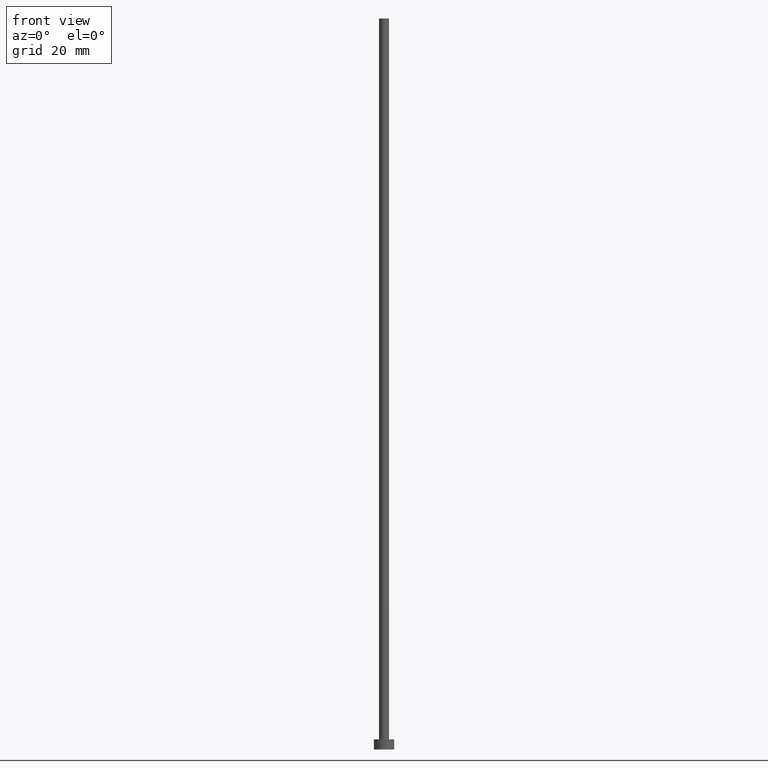
[diagram: clean part render]
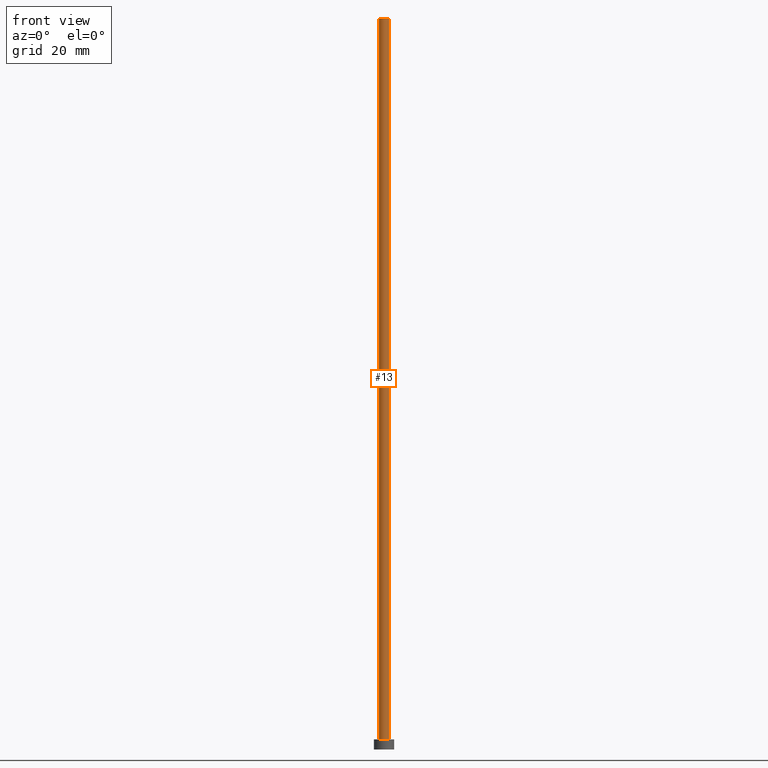
[diagram: same view with one face highlighted and labeled with its STEP entity id]
A machine part, front view. The second image highlights one B-rep face of the part: STEP entity #13.
In plain terms, the highlighted cylindrical surface (edge-blend (fillet) strip) has radius 1 mm, axis along (-0, -0, -1).
Its self-contained STEP definition (entity closure, byte-faithful):
#5 = VERTEX_POINT ( 'NONE', #41 ) ;
#9 = EDGE_LOOP ( 'NONE', ( #39, #111, #224, #11 ) ) ;
#11 = ORIENTED_EDGE ( 'NONE', *, *, #109, .T. ) ;
#13 = ADVANCED_FACE ( 'NONE', ( #180 ), #167, .T. ) ;
#27 = DIRECTION ( 'NONE',  ( 1.000000000000000000, 0.000000000000000000, 0.000000000000000000 ) ) ;
#39 = ORIENTED_EDGE ( 'NONE', *, *, #140, .F. ) ;
#41 = CARTESIAN_POINT ( 'NONE',  ( 1.000000000000000000, 1.224646799147352961E-16, 2.000000000000000000 ) ) ;
#46 = AXIS2_PLACEMENT_3D ( 'NONE', #231, #205, #188 ) ;
#47 = CARTESIAN_POINT ( 'NONE',  ( 0.000000000000000000, 0.000000000000000000, 145.1999999999999886 ) ) ;
#49 = CIRCLE ( 'NONE', #65, 1.000000000000000000 ) ;
#64 = VERTEX_POINT ( 'NONE', #201 ) ;
#65 = AXIS2_PLACEMENT_3D ( 'NONE', #47, #172, #170 ) ;
#95 = VERTEX_POINT ( 'NONE', #250 ) ;
#100 = CARTESIAN_POINT ( 'NONE',  ( 1.000000000000000000, 1.224646799147352961E-16, 145.1999999999999886 ) ) ;
#107 = DIRECTION ( 'NONE',  ( -0.000000000000000000, -0.000000000000000000, -1.000000000000000000 ) ) ;
#109 = EDGE_CURVE ( 'NONE', #95, #5, #110, .T. ) ;
#110 = CIRCLE ( 'NONE', #129, 1.000000000000000000 ) ;
#111 = ORIENTED_EDGE ( 'NONE', *, *, #174, .F. ) ;
#112 = VECTOR ( 'NONE', #107, 1000.000000000000000 ) ;
#116 = CARTESIAN_POINT ( 'NONE',  ( 1.000000000000000000, 1.224646799147352961E-16, 145.1999999999999886 ) ) ;
#129 = AXIS2_PLACEMENT_3D ( 'NONE', #226, #210, #27 ) ;
#137 = VERTEX_POINT ( 'NONE', #100 ) ;
#140 = EDGE_CURVE ( 'NONE', #137, #5, #186, .T. ) ;
#145 = LINE ( 'NONE', #173, #112 ) ;
#147 = EDGE_CURVE ( 'NONE', #64, #95, #145, .T. ) ;
#167 = CYLINDRICAL_SURFACE ( 'NONE', #46, 1.000000000000000000 ) ;
#170 = DIRECTION ( 'NONE',  ( 1.000000000000000000, 0.000000000000000000, 0.000000000000000000 ) ) ;
#172 = DIRECTION ( 'NONE',  ( 0.000000000000000000, 0.000000000000000000, 1.000000000000000000 ) ) ;
#173 = CARTESIAN_POINT ( 'NONE',  ( -1.000000000000000000, 0.000000000000000000, 145.1999999999999886 ) ) ;
#174 = EDGE_CURVE ( 'NONE', #64, #137, #49, .T. ) ;
#175 = VECTOR ( 'NONE', #220, 1000.000000000000000 ) ;
#180 = FACE_OUTER_BOUND ( 'NONE', #9, .T. ) ;
#186 = LINE ( 'NONE', #116, #175 ) ;
#188 = DIRECTION ( 'NONE',  ( -1.000000000000000000, 0.000000000000000000, 0.000000000000000000 ) ) ;
#201 = CARTESIAN_POINT ( 'NONE',  ( -1.000000000000000000, 0.000000000000000000, 145.1999999999999886 ) ) ;
#205 = DIRECTION ( 'NONE',  ( -0.000000000000000000, -0.000000000000000000, -1.000000000000000000 ) ) ;
#210 = DIRECTION ( 'NONE',  ( 0.000000000000000000, 0.000000000000000000, 1.000000000000000000 ) ) ;
#220 = DIRECTION ( 'NONE',  ( -0.000000000000000000, -0.000000000000000000, -1.000000000000000000 ) ) ;
#224 = ORIENTED_EDGE ( 'NONE', *, *, #147, .T. ) ;
#226 = CARTESIAN_POINT ( 'NONE',  ( 0.000000000000000000, 0.000000000000000000, 2.000000000000000000 ) ) ;
#231 = CARTESIAN_POINT ( 'NONE',  ( 0.000000000000000000, 0.000000000000000000, 145.1999999999999886 ) ) ;
#250 = CARTESIAN_POINT ( 'NONE',  ( -1.000000000000000000, 0.000000000000000000, 2.000000000000000000 ) ) ;